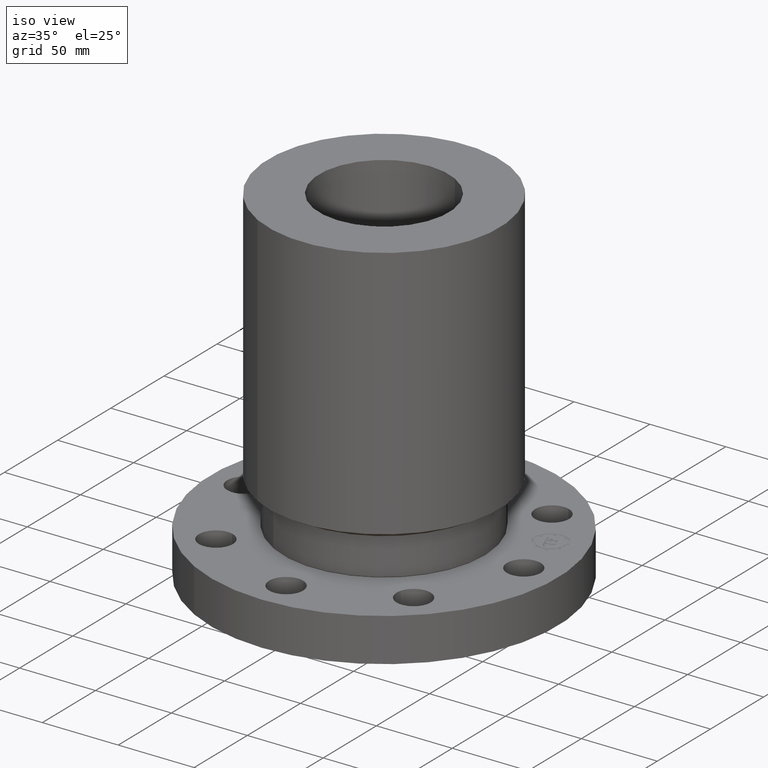
[diagram: clean part render]
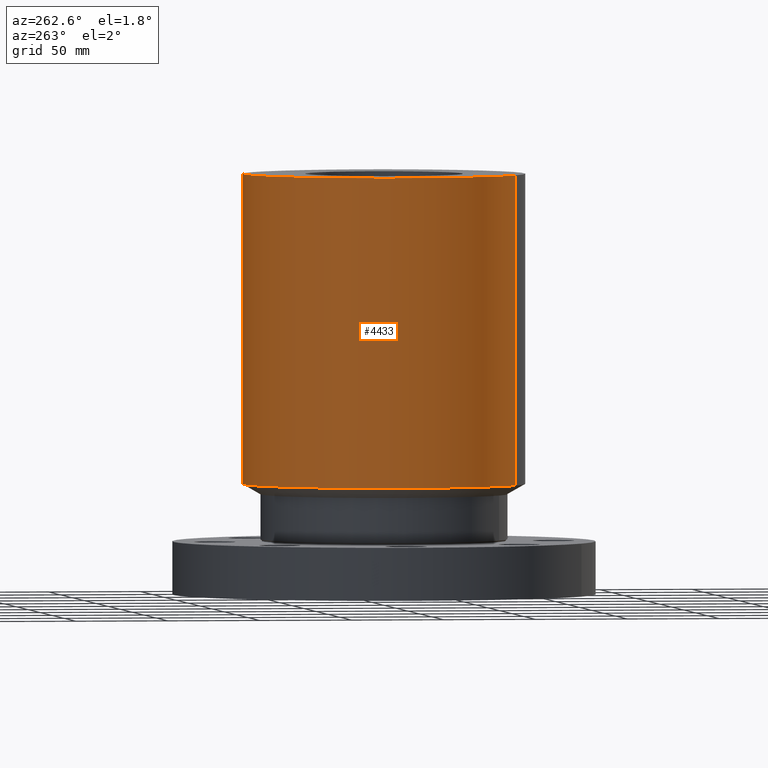
[diagram: tour spotlight — one face highlighted and labeled with its STEP entity id]
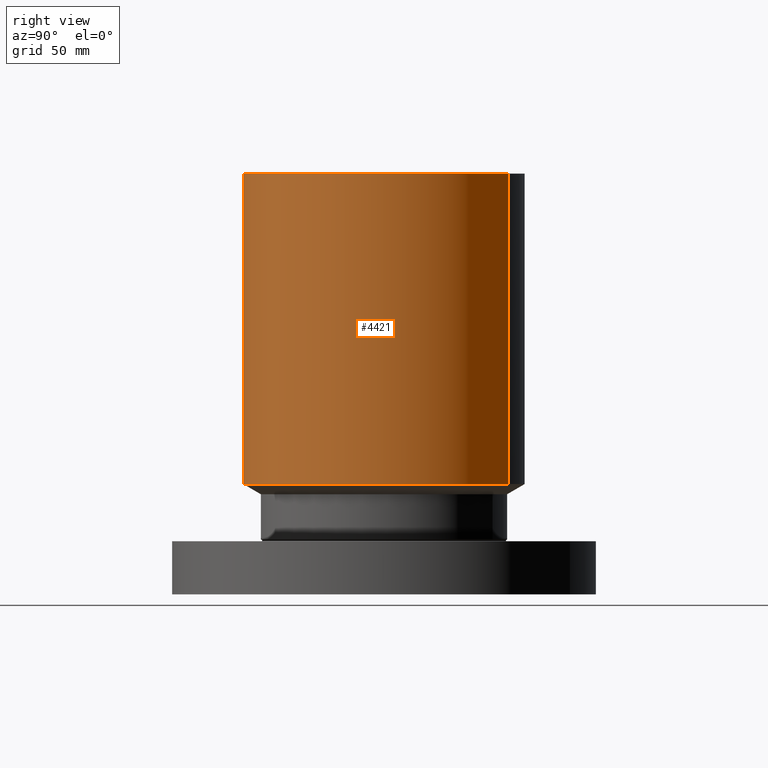
[diagram: tour spotlight — one face highlighted and labeled with its STEP entity id]
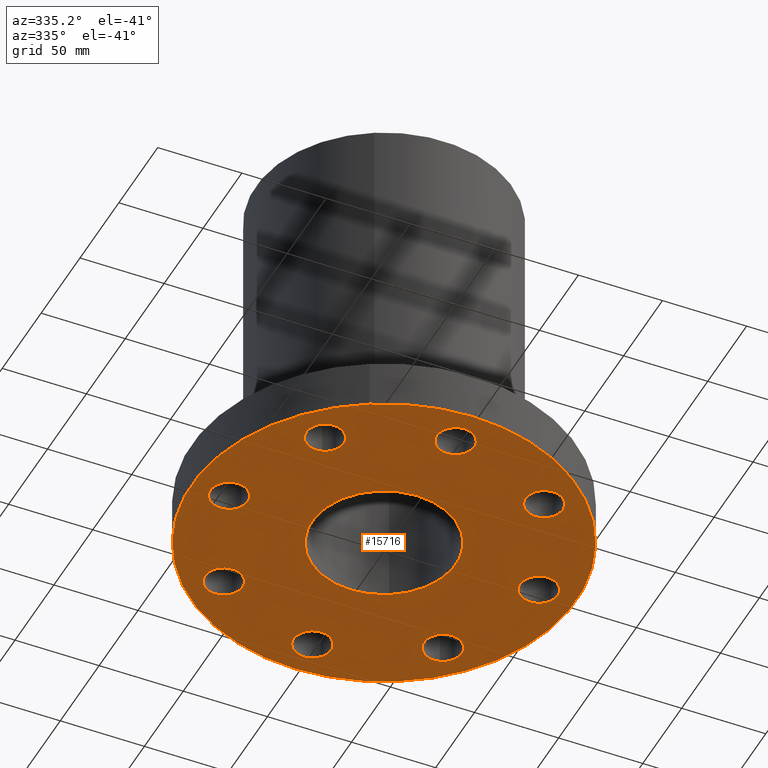
[diagram: tour spotlight — one face highlighted and labeled with its STEP entity id]
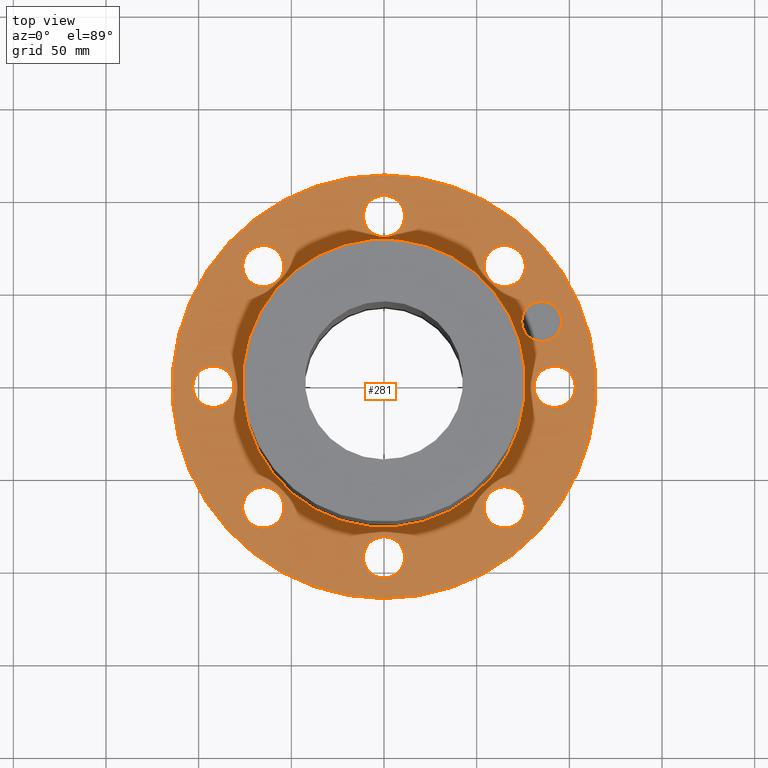
[diagram: tour spotlight — one face highlighted and labeled with its STEP entity id]
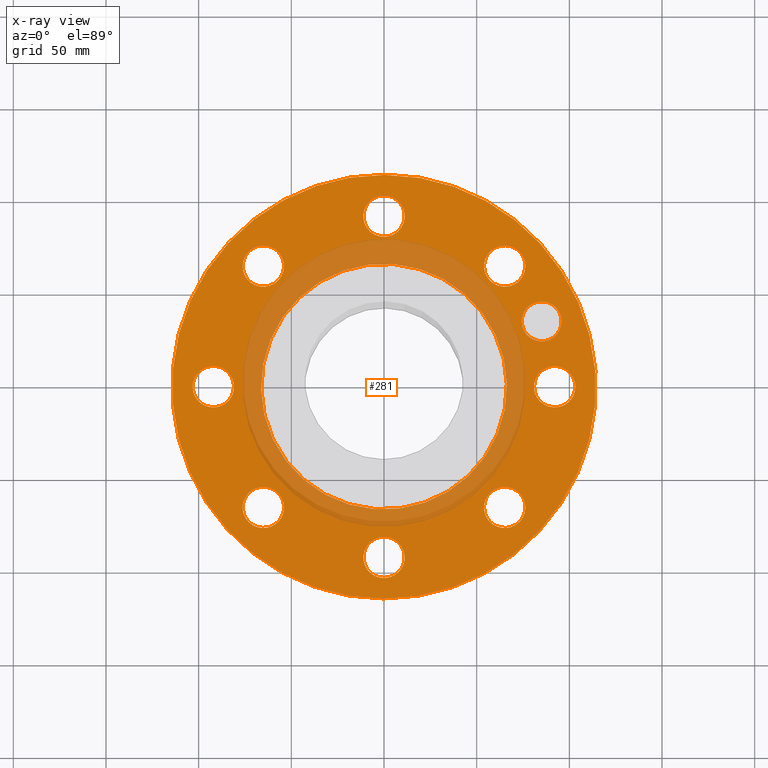
[diagram: x-ray of the same camera — body ghosted, this tour face saturated]
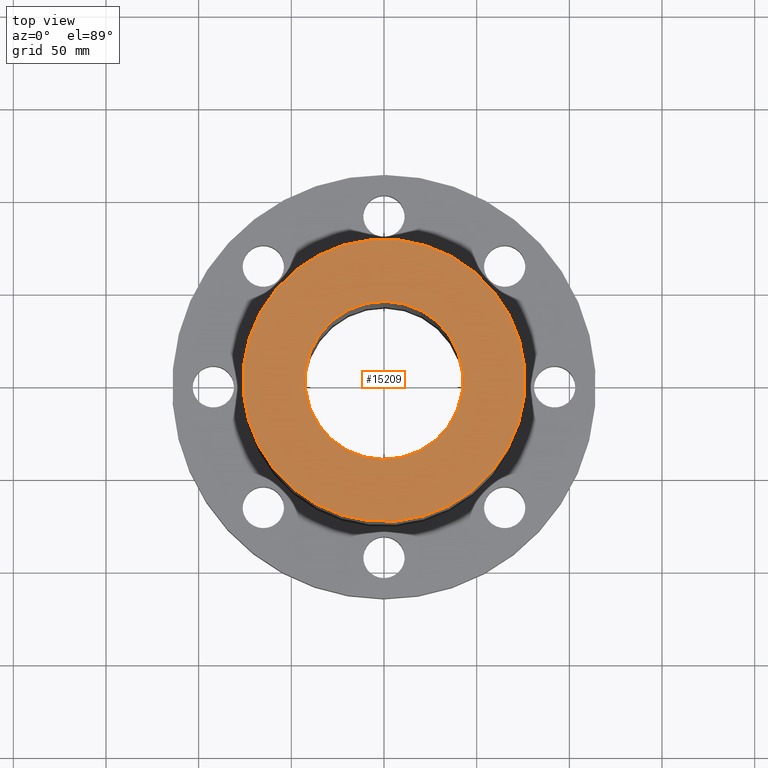
[diagram: tour spotlight — one face highlighted and labeled with its STEP entity id]
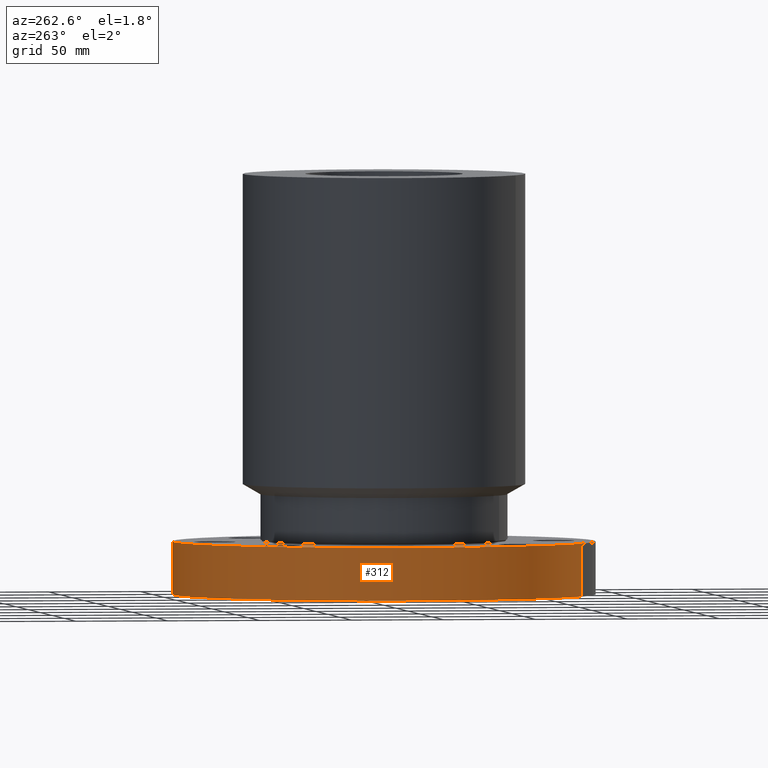
[diagram: tour spotlight — one face highlighted and labeled with its STEP entity id]
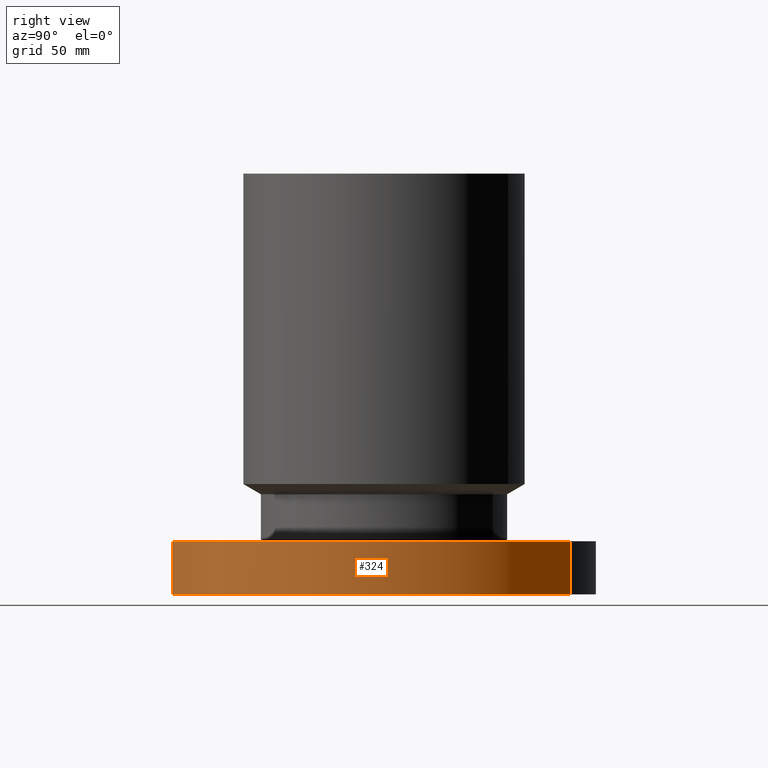
[diagram: tour spotlight — one face highlighted and labeled with its STEP entity id]
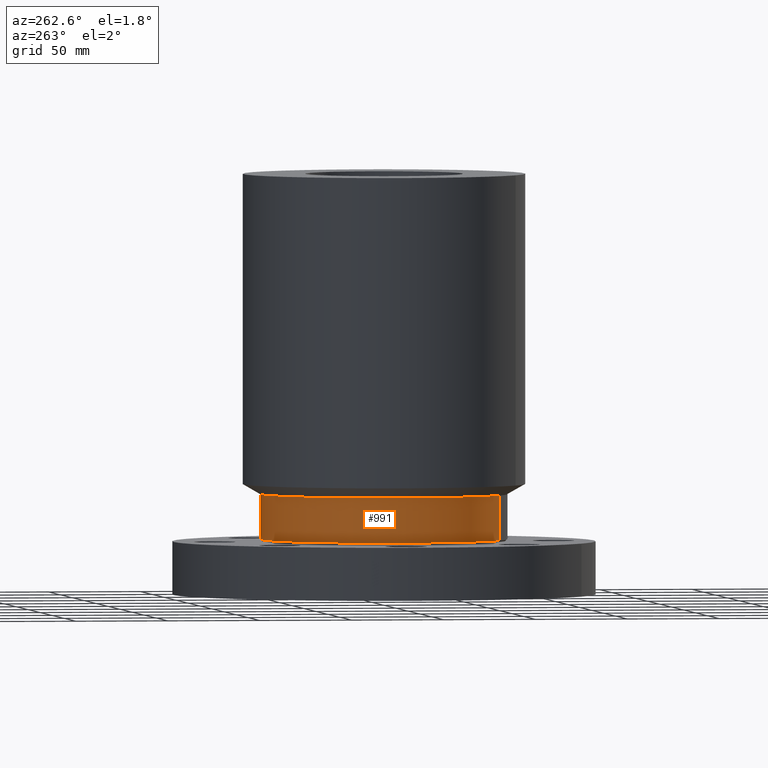
[diagram: tour spotlight — one face highlighted and labeled with its STEP entity id]
A machine part: a face-by-face anatomy tour. The part has 418 B-rep faces; the first image is the clean iso view, then the 8 largest visible faces are spotlighted one at a time (largest first), each with its STEP entity span.

Face 1 — auxiliary view, entity #4433. In plain terms, the highlighted cylindrical surface (partial cylindrical patch) has radius 76.2 mm, axis along (0, 0, -1).
Definition (entity closure, byte-faithful):
#1538=AXIS2_PLACEMENT_3D('Circle Axis2P3D',#1536,#1537,$) ;
#4394=AXIS2_PLACEMENT_3D('Cylinder Axis2P3D',#4391,#4392,#4393) ;
#4424=AXIS2_PLACEMENT_3D('Circle Axis2P3D',#4422,#4423,$) ;
#1514=CARTESIAN_POINT('Vertex',(1.43827661582,2.63274768568,2.34400635096)) ;
#1521=CARTESIAN_POINT('Vertex',(-1.43827661582,-2.63274768568,2.34400635096)) ;
#1536=CARTESIAN_POINT('Axis2P3D Location',(0.,0.,2.34400635096)) ;
#4391=CARTESIAN_POINT('Axis2P3D Location',(0.,0.,4.43750000002)) ;
#4396=CARTESIAN_POINT('Line Origine',(1.43827661582,2.63274768568,5.6407531755)) ;
#4400=CARTESIAN_POINT('Vertex',(1.43827661582,2.63274768568,8.93750000004)) ;
#4407=CARTESIAN_POINT('Vertex',(-1.43827661582,-2.63274768568,8.93750000004)) ;
#4410=CARTESIAN_POINT('Line Origine',(-1.43827661582,-2.63274768568,5.6407531755)) ;
#4422=CARTESIAN_POINT('Axis2P3D Location',(0.,0.,8.93750000004)) ;
#1537=DIRECTION('Axis2P3D Direction',(-0.,0.,0.0393700787402)) ;
#4392=DIRECTION('Axis2P3D Direction',(0.,0.,-0.0393700787402)) ;
#4393=DIRECTION('Axis2P3D XDirection',(-0.0188750212049,-0.0345504945626,0.)) ;
#4397=DIRECTION('Vector Direction',(0.,0.,-0.0393700787402)) ;
#4411=DIRECTION('Vector Direction',(0.,0.,-0.0393700787402)) ;
#4423=DIRECTION('Axis2P3D Direction',(0.,0.,-0.0393700787402)) ;
#4398=VECTOR('Line Direction',#4397,0.0393700787402) ;
#4412=VECTOR('Line Direction',#4411,0.0393700787402) ;
#4428=ORIENTED_EDGE('',*,*,#1540,.F.) ;
#4429=ORIENTED_EDGE('',*,*,#4414,.T.) ;
#4430=ORIENTED_EDGE('',*,*,#4426,.T.) ;
#4431=ORIENTED_EDGE('',*,*,#4402,.F.) ;
#4433=ADVANCED_FACE('PartBody',(#4432),#4395,.T.) ;
#1539=CIRCLE('generated circle',#1538,3.00000000001) ;
#4425=CIRCLE('generated circle',#4424,3.00000000001) ;
#4395=CYLINDRICAL_SURFACE('generated cylinder',#4394,3.00000000001) ;
#1540=EDGE_CURVE('',#1522,#1515,#1539,.F.) ;
#4402=EDGE_CURVE('',#1515,#4401,#4399,.F.) ;
#4414=EDGE_CURVE('',#1522,#4408,#4413,.F.) ;
#4426=EDGE_CURVE('',#4408,#4401,#4425,.T.) ;
#4427=EDGE_LOOP('',(#4428,#4429,#4430,#4431)) ;
#4432=FACE_OUTER_BOUND('',#4427,.T.) ;
#4399=LINE('Line',#4396,#4398) ;
#4413=LINE('Line',#4410,#4412) ;
#1515=VERTEX_POINT('',#1514) ;
#1522=VERTEX_POINT('',#1521) ;
#4401=VERTEX_POINT('',#4400) ;
#4408=VERTEX_POINT('',#4407) ;

Face 2 — right view, entity #4421. In plain terms, the highlighted cylindrical surface (partial cylindrical patch) has radius 76.2 mm, axis along (0, 0, -1).
Definition (entity closure, byte-faithful):
#1519=AXIS2_PLACEMENT_3D('Circle Axis2P3D',#1517,#1518,$) ;
#4394=AXIS2_PLACEMENT_3D('Cylinder Axis2P3D',#4391,#4392,#4393) ;
#4405=AXIS2_PLACEMENT_3D('Circle Axis2P3D',#4403,#4404,$) ;
#1514=CARTESIAN_POINT('Vertex',(1.43827661582,2.63274768568,2.34400635096)) ;
#1517=CARTESIAN_POINT('Axis2P3D Location',(0.,0.,2.34400635096)) ;
#1521=CARTESIAN_POINT('Vertex',(-1.43827661582,-2.63274768568,2.34400635096)) ;
#4391=CARTESIAN_POINT('Axis2P3D Location',(0.,0.,4.43750000002)) ;
#4396=CARTESIAN_POINT('Line Origine',(1.43827661582,2.63274768568,5.6407531755)) ;
#4400=CARTESIAN_POINT('Vertex',(1.43827661582,2.63274768568,8.93750000004)) ;
#4403=CARTESIAN_POINT('Axis2P3D Location',(0.,0.,8.93750000004)) ;
#4407=CARTESIAN_POINT('Vertex',(-1.43827661582,-2.63274768568,8.93750000004)) ;
#4410=CARTESIAN_POINT('Line Origine',(-1.43827661582,-2.63274768568,5.6407531755)) ;
#1518=DIRECTION('Axis2P3D Direction',(-0.,0.,0.0393700787402)) ;
#4392=DIRECTION('Axis2P3D Direction',(0.,0.,-0.0393700787402)) ;
#4393=DIRECTION('Axis2P3D XDirection',(-0.0188750212049,-0.0345504945626,0.)) ;
#4397=DIRECTION('Vector Direction',(0.,0.,-0.0393700787402)) ;
#4404=DIRECTION('Axis2P3D Direction',(0.,0.,-0.0393700787402)) ;
#4411=DIRECTION('Vector Direction',(0.,0.,-0.0393700787402)) ;
#4398=VECTOR('Line Direction',#4397,0.0393700787402) ;
#4412=VECTOR('Line Direction',#4411,0.0393700787402) ;
#4416=ORIENTED_EDGE('',*,*,#1523,.F.) ;
#4417=ORIENTED_EDGE('',*,*,#4402,.T.) ;
#4418=ORIENTED_EDGE('',*,*,#4409,.T.) ;
#4419=ORIENTED_EDGE('',*,*,#4414,.F.) ;
#4421=ADVANCED_FACE('PartBody',(#4420),#4395,.T.) ;
#1520=CIRCLE('generated circle',#1519,3.00000000001) ;
#4406=CIRCLE('generated circle',#4405,3.00000000001) ;
#4395=CYLINDRICAL_SURFACE('generated cylinder',#4394,3.00000000001) ;
#1523=EDGE_CURVE('',#1515,#1522,#1520,.F.) ;
#4402=EDGE_CURVE('',#1515,#4401,#4399,.F.) ;
#4409=EDGE_CURVE('',#4401,#4408,#4406,.T.) ;
#4414=EDGE_CURVE('',#1522,#4408,#4413,.F.) ;
#4415=EDGE_LOOP('',(#4416,#4417,#4418,#4419)) ;
#4420=FACE_OUTER_BOUND('',#4415,.T.) ;
#4399=LINE('Line',#4396,#4398) ;
#4413=LINE('Line',#4410,#4412) ;
#1515=VERTEX_POINT('',#1514) ;
#1522=VERTEX_POINT('',#1521) ;
#4401=VERTEX_POINT('',#4400) ;
#4408=VERTEX_POINT('',#4407) ;

Face 3 — auxiliary view, entity #15716. In plain terms, the highlighted planar face has unit normal (0, 0, 1).
Definition (entity closure, byte-faithful):
#65=AXIS2_PLACEMENT_3D('Circle Axis2P3D',#63,#64,$) ;
#82=AXIS2_PLACEMENT_3D('Circle Axis2P3D',#80,#81,$) ;
#289=AXIS2_PLACEMENT_3D('Circle Axis2P3D',#287,#288,$) ;
#315=AXIS2_PLACEMENT_3D('Circle Axis2P3D',#313,#314,$) ;
#389=AXIS2_PLACEMENT_3D('Circle Axis2P3D',#387,#388,$) ;
#401=AXIS2_PLACEMENT_3D('Circle Axis2P3D',#399,#400,$) ;
#432=AXIS2_PLACEMENT_3D('Circle Axis2P3D',#430,#431,$) ;
#444=AXIS2_PLACEMENT_3D('Circle Axis2P3D',#442,#443,$) ;
#475=AXIS2_PLACEMENT_3D('Circle Axis2P3D',#473,#474,$) ;
#487=AXIS2_PLACEMENT_3D('Circle Axis2P3D',#485,#486,$) ;
#518=AXIS2_PLACEMENT_3D('Circle Axis2P3D',#516,#517,$) ;
#530=AXIS2_PLACEMENT_3D('Circle Axis2P3D',#528,#529,$) ;
#561=AXIS2_PLACEMENT_3D('Circle Axis2P3D',#559,#560,$) ;
#573=AXIS2_PLACEMENT_3D('Circle Axis2P3D',#571,#572,$) ;
#604=AXIS2_PLACEMENT_3D('Circle Axis2P3D',#602,#603,$) ;
#616=AXIS2_PLACEMENT_3D('Circle Axis2P3D',#614,#615,$) ;
#647=AXIS2_PLACEMENT_3D('Circle Axis2P3D',#645,#646,$) ;
#659=AXIS2_PLACEMENT_3D('Circle Axis2P3D',#657,#658,$) ;
#15635=AXIS2_PLACEMENT_3D('Circle Axis2P3D',#15633,#15634,$) ;
#15661=AXIS2_PLACEMENT_3D('Circle Axis2P3D',#15659,#15660,$) ;
#15674=AXIS2_PLACEMENT_3D('Plane Axis2P3D',#15671,#15672,#15673) ;
#46=CARTESIAN_POINT('Vertex',(3.23886367278,-0.210947236987,2.2401153548E-016)) ;
#60=CARTESIAN_POINT('Vertex',(4.01113632725,0.210947236987,2.2401153548E-016)) ;
#63=CARTESIAN_POINT('Axis2P3D Location',(3.62500000001,0.,0.)) ;
#80=CARTESIAN_POINT('Axis2P3D Location',(3.62500000001,0.,0.)) ;
#287=CARTESIAN_POINT('Axis2P3D Location',(0.,0.,5.59482469102E-016)) ;
#291=CARTESIAN_POINT('Vertex',(-2.15741492373,-3.94912152852,5.59482469102E-016)) ;
#293=CARTESIAN_POINT('Vertex',(2.15741492373,3.94912152852,5.59482469102E-016)) ;
#313=CARTESIAN_POINT('Axis2P3D Location',(0.,0.,5.59482469102E-016)) ;
#377=CARTESIAN_POINT('Vertex',(2.14106024462,-2.43938468811,2.2401153548E-016)) ;
#384=CARTESIAN_POINT('Vertex',(2.98546391901,-2.68713947551,2.2401153548E-016)) ;
#387=CARTESIAN_POINT('Axis2P3D Location',(2.56326208181,-2.56326208181,0.)) ;
#399=CARTESIAN_POINT('Axis2P3D Location',(2.56326208181,-2.56326208181,0.)) ;
#420=CARTESIAN_POINT('Vertex',(-0.210947236987,-3.23886367278,2.2401153548E-016)) ;
#427=CARTESIAN_POINT('Vertex',(0.210947236987,-4.01113632725,2.2401153548E-016)) ;
#430=CARTESIAN_POINT('Axis2P3D Location',(-3.37515236756E-016,-3.62500000001,0.)) ;
#442=CARTESIAN_POINT('Axis2P3D Location',(-3.37515236756E-016,-3.62500000001,0.)) ;
#463=CARTESIAN_POINT('Vertex',(-2.43938468811,-2.14106024462,2.2401153548E-016)) ;
#470=CARTESIAN_POINT('Vertex',(-2.68713947551,-2.98546391901,2.2401153548E-016)) ;
#473=CARTESIAN_POINT('Axis2P3D Location',(-2.56326208181,-2.56326208181,0.)) ;
#485=CARTESIAN_POINT('Axis2P3D Location',(-2.56326208181,-2.56326208181,0.)) ;
#506=CARTESIAN_POINT('Vertex',(-3.23886367278,0.210947236987,2.2401153548E-016)) ;
#513=CARTESIAN_POINT('Vertex',(-4.01113632725,-0.210947236987,2.2401153548E-016)) ;
#516=CARTESIAN_POINT('Axis2P3D Location',(-3.62500000001,-4.43934464693E-016,0.)) ;
#528=CARTESIAN_POINT('Axis2P3D Location',(-3.62500000001,-4.43934464693E-016,0.)) ;
#549=CARTESIAN_POINT('Vertex',(-2.14106024462,2.43938468811,2.2401153548E-016)) ;
#556=CARTESIAN_POINT('Vertex',(-2.98546391901,2.68713947551,2.2401153548E-016)) ;
#559=CARTESIAN_POINT('Axis2P3D Location',(-2.56326208181,2.56326208181,0.)) ;
#571=CARTESIAN_POINT('Axis2P3D Location',(-2.56326208181,2.56326208181,0.)) ;
#592=CARTESIAN_POINT('Vertex',(0.210947236987,3.23886367278,2.2401153548E-016)) ;
#599=CARTESIAN_POINT('Vertex',(-0.210947236987,4.01113632725,2.2401153548E-016)) ;
#602=CARTESIAN_POINT('Axis2P3D Location',(-6.65901697039E-016,3.62500000001,0.)) ;
#614=CARTESIAN_POINT('Axis2P3D Location',(-6.65901697039E-016,3.62500000001,0.)) ;
#635=CARTESIAN_POINT('Vertex',(2.43938468811,2.14106024462,2.2401153548E-016)) ;
#642=CARTESIAN_POINT('Vertex',(2.68713947551,2.98546391901,2.2401153548E-016)) ;
#645=CARTESIAN_POINT('Axis2P3D Location',(2.56326208181,2.56326208181,0.)) ;
#657=CARTESIAN_POINT('Axis2P3D Location',(2.56326208181,2.56326208181,0.)) ;
#15633=CARTESIAN_POINT('Axis2P3D Location',(0.,0.,0.)) ;
#15637=CARTESIAN_POINT('Vertex',(-0.805434904858,-1.47433870398,0.)) ;
#15639=CARTESIAN_POINT('Vertex',(0.805434904858,1.47433870398,0.)) ;
#15659=CARTESIAN_POINT('Axis2P3D Location',(0.,0.,0.)) ;
#15671=CARTESIAN_POINT('Axis2P3D Location',(0.,0.,0.)) ;
#64=DIRECTION('Axis2P3D Direction',(0.,-0.,0.0393700787402)) ;
#81=DIRECTION('Axis2P3D Direction',(0.,-0.,0.0393700787402)) ;
#288=DIRECTION('Axis2P3D Direction',(0.,0.,-0.0393700787402)) ;
#314=DIRECTION('Axis2P3D Direction',(0.,0.,-0.0393700787402)) ;
#388=DIRECTION('Axis2P3D Direction',(-0.,0.,0.0393700787402)) ;
#400=DIRECTION('Axis2P3D Direction',(-0.,0.,0.0393700787402)) ;
#431=DIRECTION('Axis2P3D Direction',(-0.,0.,0.0393700787402)) ;
#443=DIRECTION('Axis2P3D Direction',(-0.,0.,0.0393700787402)) ;
#474=DIRECTION('Axis2P3D Direction',(0.,0.,0.0393700787402)) ;
#486=DIRECTION('Axis2P3D Direction',(0.,0.,0.0393700787402)) ;
#517=DIRECTION('Axis2P3D Direction',(0.,0.,0.0393700787402)) ;
#529=DIRECTION('Axis2P3D Direction',(0.,0.,0.0393700787402)) ;
#560=DIRECTION('Axis2P3D Direction',(0.,0.,0.0393700787402)) ;
#572=DIRECTION('Axis2P3D Direction',(0.,0.,0.0393700787402)) ;
#603=DIRECTION('Axis2P3D Direction',(0.,0.,0.0393700787402)) ;
#615=DIRECTION('Axis2P3D Direction',(0.,0.,0.0393700787402)) ;
#646=DIRECTION('Axis2P3D Direction',(0.,-0.,0.0393700787402)) ;
#658=DIRECTION('Axis2P3D Direction',(0.,-0.,0.0393700787402)) ;
#15634=DIRECTION('Axis2P3D Direction',(0.,0.,-0.0393700787402)) ;
#15660=DIRECTION('Axis2P3D Direction',(0.,0.,-0.0393700787402)) ;
#15672=DIRECTION('Axis2P3D Direction',(0.,0.,0.0393700787402)) ;
#15673=DIRECTION('Axis2P3D XDirection',(0.0393700787402,0.,0.)) ;
#15677=ORIENTED_EDGE('',*,*,#317,.T.) ;
#15678=ORIENTED_EDGE('',*,*,#295,.T.) ;
#15681=ORIENTED_EDGE('',*,*,#649,.F.) ;
#15682=ORIENTED_EDGE('',*,*,#661,.F.) ;
#15685=ORIENTED_EDGE('',*,*,#606,.F.) ;
#15686=ORIENTED_EDGE('',*,*,#618,.F.) ;
#15689=ORIENTED_EDGE('',*,*,#563,.F.) ;
#15690=ORIENTED_EDGE('',*,*,#575,.F.) ;
#15693=ORIENTED_EDGE('',*,*,#520,.F.) ;
#15694=ORIENTED_EDGE('',*,*,#532,.F.) ;
#15697=ORIENTED_EDGE('',*,*,#477,.F.) ;
#15698=ORIENTED_EDGE('',*,*,#489,.F.) ;
#15701=ORIENTED_EDGE('',*,*,#434,.F.) ;
#15702=ORIENTED_EDGE('',*,*,#446,.F.) ;
#15705=ORIENTED_EDGE('',*,*,#391,.F.) ;
#15706=ORIENTED_EDGE('',*,*,#403,.F.) ;
#15709=ORIENTED_EDGE('',*,*,#84,.F.) ;
#15710=ORIENTED_EDGE('',*,*,#67,.F.) ;
#15713=ORIENTED_EDGE('',*,*,#15663,.T.) ;
#15714=ORIENTED_EDGE('',*,*,#15641,.T.) ;
#15683=FACE_BOUND('',#15680,.T.) ;
#15687=FACE_BOUND('',#15684,.T.) ;
#15691=FACE_BOUND('',#15688,.T.) ;
#15695=FACE_BOUND('',#15692,.T.) ;
#15699=FACE_BOUND('',#15696,.T.) ;
#15703=FACE_BOUND('',#15700,.T.) ;
#15707=FACE_BOUND('',#15704,.T.) ;
#15711=FACE_BOUND('',#15708,.T.) ;
#15715=FACE_BOUND('',#15712,.T.) ;
#15716=ADVANCED_FACE('PartBody',(#15679,#15683,#15687,#15691,#15695,#15699,#15703,#15707,#15711,#15715),#15675,.F.) ;
#66=CIRCLE('generated circle',#65,0.440000000002) ;
#83=CIRCLE('generated circle',#82,0.440000000002) ;
#290=CIRCLE('generated circle',#289,4.50000000002) ;
#316=CIRCLE('generated circle',#315,4.50000000002) ;
#390=CIRCLE('generated circle',#389,0.440000000002) ;
#402=CIRCLE('generated circle',#401,0.440000000002) ;
#433=CIRCLE('generated circle',#432,0.440000000002) ;
#445=CIRCLE('generated circle',#444,0.440000000002) ;
#476=CIRCLE('generated circle',#475,0.440000000002) ;
#488=CIRCLE('generated circle',#487,0.440000000002) ;
#519=CIRCLE('generated circle',#518,0.440000000002) ;
#531=CIRCLE('generated circle',#530,0.440000000002) ;
#562=CIRCLE('generated circle',#561,0.440000000002) ;
#574=CIRCLE('generated circle',#573,0.440000000002) ;
#605=CIRCLE('generated circle',#604,0.440000000002) ;
#617=CIRCLE('generated circle',#616,0.440000000002) ;
#648=CIRCLE('generated circle',#647,0.440000000002) ;
#660=CIRCLE('generated circle',#659,0.440000000002) ;
#15636=CIRCLE('generated circle',#15635,1.68000000001) ;
#15662=CIRCLE('generated circle',#15661,1.68000000001) ;
#67=EDGE_CURVE('',#61,#47,#66,.F.) ;
#84=EDGE_CURVE('',#47,#61,#83,.F.) ;
#295=EDGE_CURVE('',#292,#294,#290,.T.) ;
#317=EDGE_CURVE('',#294,#292,#316,.T.) ;
#391=EDGE_CURVE('',#385,#378,#390,.F.) ;
#403=EDGE_CURVE('',#378,#385,#402,.F.) ;
#434=EDGE_CURVE('',#428,#421,#433,.F.) ;
#446=EDGE_CURVE('',#421,#428,#445,.F.) ;
#477=EDGE_CURVE('',#471,#464,#476,.F.) ;
#489=EDGE_CURVE('',#464,#471,#488,.F.) ;
#520=EDGE_CURVE('',#514,#507,#519,.F.) ;
#532=EDGE_CURVE('',#507,#514,#531,.F.) ;
#563=EDGE_CURVE('',#557,#550,#562,.F.) ;
#575=EDGE_CURVE('',#550,#557,#574,.F.) ;
#606=EDGE_CURVE('',#600,#593,#605,.F.) ;
#618=EDGE_CURVE('',#593,#600,#617,.F.) ;
#649=EDGE_CURVE('',#643,#636,#648,.F.) ;
#661=EDGE_CURVE('',#636,#643,#660,.F.) ;
#15641=EDGE_CURVE('',#15638,#15640,#15636,.F.) ;
#15663=EDGE_CURVE('',#15640,#15638,#15662,.F.) ;
#15676=EDGE_LOOP('',(#15677,#15678)) ;
#15680=EDGE_LOOP('',(#15681,#15682)) ;
#15684=EDGE_LOOP('',(#15685,#15686)) ;
#15688=EDGE_LOOP('',(#15689,#15690)) ;
#15692=EDGE_LOOP('',(#15693,#15694)) ;
#15696=EDGE_LOOP('',(#15697,#15698)) ;
#15700=EDGE_LOOP('',(#15701,#15702)) ;
#15704=EDGE_LOOP('',(#15705,#15706)) ;
#15708=EDGE_LOOP('',(#15709,#15710)) ;
#15712=EDGE_LOOP('',(#15713,#15714)) ;
#15679=FACE_OUTER_BOUND('',#15676,.T.) ;
#15675=PLANE('',#15674) ;
#47=VERTEX_POINT('',#46) ;
#61=VERTEX_POINT('',#60) ;
#292=VERTEX_POINT('',#291) ;
#294=VERTEX_POINT('',#293) ;
#378=VERTEX_POINT('',#377) ;
#385=VERTEX_POINT('',#384) ;
#421=VERTEX_POINT('',#420) ;
#428=VERTEX_POINT('',#427) ;
#464=VERTEX_POINT('',#463) ;
#471=VERTEX_POINT('',#470) ;
#507=VERTEX_POINT('',#506) ;
#514=VERTEX_POINT('',#513) ;
#550=VERTEX_POINT('',#549) ;
#557=VERTEX_POINT('',#556) ;
#593=VERTEX_POINT('',#592) ;
#600=VERTEX_POINT('',#599) ;
#636=VERTEX_POINT('',#635) ;
#643=VERTEX_POINT('',#642) ;
#15638=VERTEX_POINT('',#15637) ;
#15640=VERTEX_POINT('',#15639) ;

Face 4 — top view, entity #281. An x-ray twin of the same camera follows (body ghosted, this face saturated) — the face is partly hidden behind the body. In plain terms, the highlighted planar face has unit normal (0, 0, -1).
Definition (entity closure, byte-faithful):
#51=AXIS2_PLACEMENT_3D('Circle Axis2P3D',#49,#50,$) ;
#77=AXIS2_PLACEMENT_3D('Circle Axis2P3D',#75,#76,$) ;
#95=AXIS2_PLACEMENT_3D('Plane Axis2P3D',#92,#93,#94) ;
#99=AXIS2_PLACEMENT_3D('Circle Axis2P3D',#97,#98,$) ;
#108=AXIS2_PLACEMENT_3D('Circle Axis2P3D',#106,#107,$) ;
#121=AXIS2_PLACEMENT_3D('Circle Axis2P3D',#119,#120,$) ;
#130=AXIS2_PLACEMENT_3D('Circle Axis2P3D',#128,#129,$) ;
#139=AXIS2_PLACEMENT_3D('Circle Axis2P3D',#137,#138,$) ;
#148=AXIS2_PLACEMENT_3D('Circle Axis2P3D',#146,#147,$) ;
#157=AXIS2_PLACEMENT_3D('Circle Axis2P3D',#155,#156,$) ;
#166=AXIS2_PLACEMENT_3D('Circle Axis2P3D',#164,#165,$) ;
#175=AXIS2_PLACEMENT_3D('Circle Axis2P3D',#173,#174,$) ;
#184=AXIS2_PLACEMENT_3D('Circle Axis2P3D',#182,#183,$) ;
#193=AXIS2_PLACEMENT_3D('Circle Axis2P3D',#191,#192,$) ;
#202=AXIS2_PLACEMENT_3D('Circle Axis2P3D',#200,#201,$) ;
#211=AXIS2_PLACEMENT_3D('Circle Axis2P3D',#209,#210,$) ;
#220=AXIS2_PLACEMENT_3D('Circle Axis2P3D',#218,#219,$) ;
#229=AXIS2_PLACEMENT_3D('Circle Axis2P3D',#227,#228,$) ;
#238=AXIS2_PLACEMENT_3D('Circle Axis2P3D',#236,#237,$) ;
#247=AXIS2_PLACEMENT_3D('Circle Axis2P3D',#245,#246,$) ;
#256=AXIS2_PLACEMENT_3D('Circle Axis2P3D',#254,#255,$) ;
#265=AXIS2_PLACEMENT_3D('Circle Axis2P3D',#263,#264,$) ;
#274=AXIS2_PLACEMENT_3D('Circle Axis2P3D',#272,#273,$) ;
#44=CARTESIAN_POINT('Vertex',(3.23886367278,-0.210947236987,1.1275)) ;
#49=CARTESIAN_POINT('Axis2P3D Location',(3.62500000001,0.,1.1275)) ;
#53=CARTESIAN_POINT('Vertex',(4.01113632725,0.210947236987,1.1275)) ;
#75=CARTESIAN_POINT('Axis2P3D Location',(3.62500000001,0.,1.1275)) ;
#92=CARTESIAN_POINT('Axis2P3D Location',(0.,4.50000000002,1.1275)) ;
#97=CARTESIAN_POINT('Axis2P3D Location',(0.,0.,1.1275)) ;
#101=CARTESIAN_POINT('Vertex',(2.15741492373,3.94912152852,1.1275)) ;
#103=CARTESIAN_POINT('Vertex',(-2.15741492373,-3.94912152852,1.1275)) ;
#106=CARTESIAN_POINT('Axis2P3D Location',(0.,0.,1.1275)) ;
#119=CARTESIAN_POINT('Axis2P3D Location',(0.,0.,1.1275)) ;
#123=CARTESIAN_POINT('Vertex',(-1.25130065576,-2.29049048654,1.1275)) ;
#125=CARTESIAN_POINT('Vertex',(1.25130065576,2.29049048654,1.1275)) ;
#128=CARTESIAN_POINT('Axis2P3D Location',(0.,0.,1.1275)) ;
#137=CARTESIAN_POINT('Axis2P3D Location',(2.56326208181,-2.56326208181,1.1275)) ;
#141=CARTESIAN_POINT('Vertex',(2.14106024462,-2.43938468811,1.1275)) ;
#143=CARTESIAN_POINT('Vertex',(2.98546391901,-2.68713947551,1.1275)) ;
#146=CARTESIAN_POINT('Axis2P3D Location',(2.56326208181,-2.56326208181,1.1275)) ;
#155=CARTESIAN_POINT('Axis2P3D Location',(-1.39870617276E-016,-3.62500000001,1.1275)) ;
#159=CARTESIAN_POINT('Vertex',(-0.210947236987,-3.23886367278,1.1275)) ;
#161=CARTESIAN_POINT('Vertex',(0.210947236987,-4.01113632725,1.1275)) ;
#164=CARTESIAN_POINT('Axis2P3D Location',(-2.44773580232E-016,-3.62500000001,1.1275)) ;
#173=CARTESIAN_POINT('Axis2P3D Location',(-2.56326208181,-2.56326208181,1.1275)) ;
#177=CARTESIAN_POINT('Vertex',(-2.43938468811,-2.14106024462,1.1275)) ;
#179=CARTESIAN_POINT('Vertex',(-2.68713947551,-2.98546391901,1.1275)) ;
#182=CARTESIAN_POINT('Axis2P3D Location',(-2.56326208181,-2.56326208181,1.1275)) ;
#191=CARTESIAN_POINT('Axis2P3D Location',(-3.62500000001,-5.59482469102E-016,1.1275)) ;
#195=CARTESIAN_POINT('Vertex',(-3.23886367278,0.210947236987,1.1275)) ;
#197=CARTESIAN_POINT('Vertex',(-4.01113632725,-0.210947236987,1.1275)) ;
#200=CARTESIAN_POINT('Axis2P3D Location',(-3.62500000001,0.,1.1275)) ;
#209=CARTESIAN_POINT('Axis2P3D Location',(-2.56326208181,2.56326208181,1.1275)) ;
#213=CARTESIAN_POINT('Vertex',(-2.14106024462,2.43938468811,1.1275)) ;
#215=CARTESIAN_POINT('Vertex',(-2.98546391901,2.68713947551,1.1275)) ;
#218=CARTESIAN_POINT('Axis2P3D Location',(-2.56326208181,2.56326208181,1.1275)) ;
#227=CARTESIAN_POINT('Axis2P3D Location',(-4.54579506146E-016,3.62500000001,1.1275)) ;
#231=CARTESIAN_POINT('Vertex',(0.210947236987,3.23886367278,1.1275)) ;
#233=CARTESIAN_POINT('Vertex',(-0.210947236987,4.01113632725,1.1275)) ;
#236=CARTESIAN_POINT('Axis2P3D Location',(-1.04902962957E-015,3.62500000001,1.1275)) ;
#245=CARTESIAN_POINT('Axis2P3D Location',(2.56326208181,2.56326208181,1.1275)) ;
#249=CARTESIAN_POINT('Vertex',(2.43938468811,2.14106024462,1.1275)) ;
#251=CARTESIAN_POINT('Vertex',(2.68713947551,2.98546391901,1.1275)) ;
#254=CARTESIAN_POINT('Axis2P3D Location',(2.56326208181,2.56326208181,1.1275)) ;
#263=CARTESIAN_POINT('Axis2P3D Location',(3.34906330537,1.38722744233,1.1275)) ;
#267=CARTESIAN_POINT('Vertex',(3.5117037625,0.994578644937,1.1275)) ;
#269=CARTESIAN_POINT('Vertex',(3.18642284824,1.77987623972,1.1275)) ;
#272=CARTESIAN_POINT('Axis2P3D Location',(3.34906330537,1.38722744233,1.1275)) ;
#50=DIRECTION('Axis2P3D Direction',(0.,-0.,0.0393700787402)) ;
#76=DIRECTION('Axis2P3D Direction',(0.,-0.,0.0393700787402)) ;
#93=DIRECTION('Axis2P3D Direction',(0.,0.,-0.0393700787402)) ;
#94=DIRECTION('Axis2P3D XDirection',(0.0393700787402,0.,0.)) ;
#98=DIRECTION('Axis2P3D Direction',(0.,0.,-0.0393700787402)) ;
#107=DIRECTION('Axis2P3D Direction',(0.,0.,-0.0393700787402)) ;
#120=DIRECTION('Axis2P3D Direction',(0.,0.,-0.0393700787402)) ;
#129=DIRECTION('Axis2P3D Direction',(0.,0.,-0.0393700787402)) ;
#138=DIRECTION('Axis2P3D Direction',(0.,0.,-0.0393700787402)) ;
#147=DIRECTION('Axis2P3D Direction',(0.,0.,-0.0393700787402)) ;
#156=DIRECTION('Axis2P3D Direction',(0.,0.,-0.0393700787402)) ;
#165=DIRECTION('Axis2P3D Direction',(0.,0.,-0.0393700787402)) ;
#174=DIRECTION('Axis2P3D Direction',(0.,0.,-0.0393700787402)) ;
#183=DIRECTION('Axis2P3D Direction',(0.,0.,-0.0393700787402)) ;
#192=DIRECTION('Axis2P3D Direction',(0.,0.,-0.0393700787402)) ;
#201=DIRECTION('Axis2P3D Direction',(0.,0.,-0.0393700787402)) ;
#210=DIRECTION('Axis2P3D Direction',(0.,0.,-0.0393700787402)) ;
#219=DIRECTION('Axis2P3D Direction',(0.,0.,-0.0393700787402)) ;
#228=DIRECTION('Axis2P3D Direction',(0.,0.,-0.0393700787402)) ;
#237=DIRECTION('Axis2P3D Direction',(0.,0.,-0.0393700787402)) ;
#246=DIRECTION('Axis2P3D Direction',(0.,0.,-0.0393700787402)) ;
#255=DIRECTION('Axis2P3D Direction',(0.,0.,-0.0393700787402)) ;
#264=DIRECTION('Axis2P3D Direction',(0.,0.,-0.0393700787402)) ;
#273=DIRECTION('Axis2P3D Direction',(0.,0.,-0.0393700787402)) ;
#112=ORIENTED_EDGE('',*,*,#105,.F.) ;
#113=ORIENTED_EDGE('',*,*,#110,.F.) ;
#116=ORIENTED_EDGE('',*,*,#55,.T.) ;
#117=ORIENTED_EDGE('',*,*,#79,.T.) ;
#134=ORIENTED_EDGE('',*,*,#127,.T.) ;
#135=ORIENTED_EDGE('',*,*,#132,.T.) ;
#152=ORIENTED_EDGE('',*,*,#145,.T.) ;
#153=ORIENTED_EDGE('',*,*,#150,.T.) ;
#170=ORIENTED_EDGE('',*,*,#163,.T.) ;
#171=ORIENTED_EDGE('',*,*,#168,.T.) ;
#188=ORIENTED_EDGE('',*,*,#181,.T.) ;
#189=ORIENTED_EDGE('',*,*,#186,.T.) ;
#206=ORIENTED_EDGE('',*,*,#199,.T.) ;
#207=ORIENTED_EDGE('',*,*,#204,.T.) ;
#224=ORIENTED_EDGE('',*,*,#217,.T.) ;
#225=ORIENTED_EDGE('',*,*,#222,.T.) ;
#242=ORIENTED_EDGE('',*,*,#235,.T.) ;
#243=ORIENTED_EDGE('',*,*,#240,.T.) ;
#260=ORIENTED_EDGE('',*,*,#253,.T.) ;
#261=ORIENTED_EDGE('',*,*,#258,.T.) ;
#278=ORIENTED_EDGE('',*,*,#271,.F.) ;
#279=ORIENTED_EDGE('',*,*,#276,.F.) ;
#118=FACE_BOUND('',#115,.T.) ;
#136=FACE_BOUND('',#133,.T.) ;
#154=FACE_BOUND('',#151,.T.) ;
#172=FACE_BOUND('',#169,.T.) ;
#190=FACE_BOUND('',#187,.T.) ;
#208=FACE_BOUND('',#205,.T.) ;
#226=FACE_BOUND('',#223,.T.) ;
#244=FACE_BOUND('',#241,.T.) ;
#262=FACE_BOUND('',#259,.T.) ;
#280=FACE_BOUND('',#277,.T.) ;
#281=ADVANCED_FACE('PartBody',(#114,#118,#136,#154,#172,#190,#208,#226,#244,#262,#280),#96,.F.) ;
#52=CIRCLE('generated circle',#51,0.440000000002) ;
#78=CIRCLE('generated circle',#77,0.440000000002) ;
#100=CIRCLE('generated circle',#99,4.50000000002) ;
#109=CIRCLE('generated circle',#108,4.50000000002) ;
#122=CIRCLE('generated circle',#121,2.61000000001) ;
#131=CIRCLE('generated circle',#130,2.61000000001) ;
#140=CIRCLE('generated circle',#139,0.440000000002) ;
#149=CIRCLE('generated circle',#148,0.440000000002) ;
#158=CIRCLE('generated circle',#157,0.440000000002) ;
#167=CIRCLE('generated circle',#166,0.440000000002) ;
#176=CIRCLE('generated circle',#175,0.440000000002) ;
#185=CIRCLE('generated circle',#184,0.440000000002) ;
#194=CIRCLE('generated circle',#193,0.440000000002) ;
#203=CIRCLE('generated circle',#202,0.440000000002) ;
#212=CIRCLE('generated circle',#211,0.440000000002) ;
#221=CIRCLE('generated circle',#220,0.440000000002) ;
#230=CIRCLE('generated circle',#229,0.440000000002) ;
#239=CIRCLE('generated circle',#238,0.440000000002) ;
#248=CIRCLE('generated circle',#247,0.440000000002) ;
#257=CIRCLE('generated circle',#256,0.440000000002) ;
#266=CIRCLE('generated circle',#265,0.424999995752) ;
#275=CIRCLE('generated circle',#274,0.424999995752) ;
#55=EDGE_CURVE('',#54,#45,#52,.F.) ;
#79=EDGE_CURVE('',#45,#54,#78,.F.) ;
#105=EDGE_CURVE('',#102,#104,#100,.T.) ;
#110=EDGE_CURVE('',#104,#102,#109,.T.) ;
#127=EDGE_CURVE('',#124,#126,#122,.T.) ;
#132=EDGE_CURVE('',#126,#124,#131,.T.) ;
#145=EDGE_CURVE('',#142,#144,#140,.T.) ;
#150=EDGE_CURVE('',#144,#142,#149,.T.) ;
#163=EDGE_CURVE('',#160,#162,#158,.T.) ;
#168=EDGE_CURVE('',#162,#160,#167,.T.) ;
#181=EDGE_CURVE('',#178,#180,#176,.T.) ;
#186=EDGE_CURVE('',#180,#178,#185,.T.) ;
#199=EDGE_CURVE('',#196,#198,#194,.T.) ;
#204=EDGE_CURVE('',#198,#196,#203,.T.) ;
#217=EDGE_CURVE('',#214,#216,#212,.T.) ;
#222=EDGE_CURVE('',#216,#214,#221,.T.) ;
#235=EDGE_CURVE('',#232,#234,#230,.T.) ;
#240=EDGE_CURVE('',#234,#232,#239,.T.) ;
#253=EDGE_CURVE('',#250,#252,#248,.T.) ;
#258=EDGE_CURVE('',#252,#250,#257,.T.) ;
#271=EDGE_CURVE('',#268,#270,#266,.F.) ;
#276=EDGE_CURVE('',#270,#268,#275,.F.) ;
#111=EDGE_LOOP('',(#112,#113)) ;
#115=EDGE_LOOP('',(#116,#117)) ;
#133=EDGE_LOOP('',(#134,#135)) ;
#151=EDGE_LOOP('',(#152,#153)) ;
#169=EDGE_LOOP('',(#170,#171)) ;
#187=EDGE_LOOP('',(#188,#189)) ;
#205=EDGE_LOOP('',(#206,#207)) ;
#223=EDGE_LOOP('',(#224,#225)) ;
#241=EDGE_LOOP('',(#242,#243)) ;
#259=EDGE_LOOP('',(#260,#261)) ;
#277=EDGE_LOOP('',(#278,#279)) ;
#114=FACE_OUTER_BOUND('',#111,.T.) ;
#96=PLANE('',#95) ;
#45=VERTEX_POINT('',#44) ;
#54=VERTEX_POINT('',#53) ;
#102=VERTEX_POINT('',#101) ;
#104=VERTEX_POINT('',#103) ;
#124=VERTEX_POINT('',#123) ;
#126=VERTEX_POINT('',#125) ;
#142=VERTEX_POINT('',#141) ;
#144=VERTEX_POINT('',#143) ;
#160=VERTEX_POINT('',#159) ;
#162=VERTEX_POINT('',#161) ;
#178=VERTEX_POINT('',#177) ;
#180=VERTEX_POINT('',#179) ;
#196=VERTEX_POINT('',#195) ;
#198=VERTEX_POINT('',#197) ;
#214=VERTEX_POINT('',#213) ;
#216=VERTEX_POINT('',#215) ;
#232=VERTEX_POINT('',#231) ;
#234=VERTEX_POINT('',#233) ;
#250=VERTEX_POINT('',#249) ;
#252=VERTEX_POINT('',#251) ;
#268=VERTEX_POINT('',#267) ;
#270=VERTEX_POINT('',#269) ;

Face 5 — top view, entity #15209. In plain terms, the highlighted planar face has unit normal (0, 0, -1).
Definition (entity closure, byte-faithful):
#4405=AXIS2_PLACEMENT_3D('Circle Axis2P3D',#4403,#4404,$) ;
#4424=AXIS2_PLACEMENT_3D('Circle Axis2P3D',#4422,#4423,$) ;
#15185=AXIS2_PLACEMENT_3D('Plane Axis2P3D',#15182,#15183,#15184) ;
#15193=AXIS2_PLACEMENT_3D('Circle Axis2P3D',#15191,#15192,$) ;
#15202=AXIS2_PLACEMENT_3D('Circle Axis2P3D',#15200,#15201,$) ;
#4400=CARTESIAN_POINT('Vertex',(1.43827661582,2.63274768568,8.93750000004)) ;
#4403=CARTESIAN_POINT('Axis2P3D Location',(0.,0.,8.93750000004)) ;
#4407=CARTESIAN_POINT('Vertex',(-1.43827661582,-2.63274768568,8.93750000004)) ;
#4422=CARTESIAN_POINT('Axis2P3D Location',(0.,0.,8.93750000004)) ;
#15182=CARTESIAN_POINT('Axis2P3D Location',(0.,3.00000000001,8.93750000004)) ;
#15191=CARTESIAN_POINT('Axis2P3D Location',(0.,0.,8.93750000004)) ;
#15195=CARTESIAN_POINT('Vertex',(-0.805434904858,-1.47433870398,8.93750000004)) ;
#15197=CARTESIAN_POINT('Vertex',(0.805434904858,1.47433870398,8.93750000004)) ;
#15200=CARTESIAN_POINT('Axis2P3D Location',(0.,0.,8.93750000004)) ;
#4404=DIRECTION('Axis2P3D Direction',(0.,0.,-0.0393700787402)) ;
#4423=DIRECTION('Axis2P3D Direction',(0.,0.,-0.0393700787402)) ;
#15183=DIRECTION('Axis2P3D Direction',(0.,0.,-0.0393700787402)) ;
#15184=DIRECTION('Axis2P3D XDirection',(0.0393700787402,0.,0.)) ;
#15192=DIRECTION('Axis2P3D Direction',(0.,0.,-0.0393700787402)) ;
#15201=DIRECTION('Axis2P3D Direction',(0.,0.,-0.0393700787402)) ;
#15188=ORIENTED_EDGE('',*,*,#4409,.F.) ;
#15189=ORIENTED_EDGE('',*,*,#4426,.F.) ;
#15206=ORIENTED_EDGE('',*,*,#15199,.T.) ;
#15207=ORIENTED_EDGE('',*,*,#15204,.T.) ;
#15208=FACE_BOUND('',#15205,.T.) ;
#15209=ADVANCED_FACE('PartBody',(#15190,#15208),#15186,.F.) ;
#4406=CIRCLE('generated circle',#4405,3.00000000001) ;
#4425=CIRCLE('generated circle',#4424,3.00000000001) ;
#15194=CIRCLE('generated circle',#15193,1.68000000001) ;
#15203=CIRCLE('generated circle',#15202,1.68000000001) ;
#4409=EDGE_CURVE('',#4401,#4408,#4406,.T.) ;
#4426=EDGE_CURVE('',#4408,#4401,#4425,.T.) ;
#15199=EDGE_CURVE('',#15196,#15198,#15194,.T.) ;
#15204=EDGE_CURVE('',#15198,#15196,#15203,.T.) ;
#15187=EDGE_LOOP('',(#15188,#15189)) ;
#15205=EDGE_LOOP('',(#15206,#15207)) ;
#15190=FACE_OUTER_BOUND('',#15187,.T.) ;
#15186=PLANE('',#15185) ;
#4401=VERTEX_POINT('',#4400) ;
#4408=VERTEX_POINT('',#4407) ;
#15196=VERTEX_POINT('',#15195) ;
#15198=VERTEX_POINT('',#15197) ;

Face 6 — auxiliary view, entity #312. In plain terms, the highlighted cylindrical surface (partial cylindrical patch) has radius 114.3 mm, axis along (0, 0, -1).
Definition (entity closure, byte-faithful):
#108=AXIS2_PLACEMENT_3D('Circle Axis2P3D',#106,#107,$) ;
#285=AXIS2_PLACEMENT_3D('Cylinder Axis2P3D',#282,#283,#284) ;
#289=AXIS2_PLACEMENT_3D('Circle Axis2P3D',#287,#288,$) ;
#101=CARTESIAN_POINT('Vertex',(2.15741492373,3.94912152852,1.1275)) ;
#103=CARTESIAN_POINT('Vertex',(-2.15741492373,-3.94912152852,1.1275)) ;
#106=CARTESIAN_POINT('Axis2P3D Location',(0.,0.,1.1275)) ;
#282=CARTESIAN_POINT('Axis2P3D Location',(0.,0.,4.43750000002)) ;
#287=CARTESIAN_POINT('Axis2P3D Location',(0.,0.,5.59482469102E-016)) ;
#291=CARTESIAN_POINT('Vertex',(-2.15741492373,-3.94912152852,5.59482469102E-016)) ;
#293=CARTESIAN_POINT('Vertex',(2.15741492373,3.94912152852,5.59482469102E-016)) ;
#296=CARTESIAN_POINT('Line Origine',(-2.15741492373,-3.94912152852,0.563750000002)) ;
#301=CARTESIAN_POINT('Line Origine',(2.15741492373,3.94912152852,0.563750000002)) ;
#107=DIRECTION('Axis2P3D Direction',(0.,0.,-0.0393700787402)) ;
#283=DIRECTION('Axis2P3D Direction',(0.,0.,-0.0393700787402)) ;
#284=DIRECTION('Axis2P3D XDirection',(0.0188750212049,0.0345504945626,0.)) ;
#288=DIRECTION('Axis2P3D Direction',(0.,0.,-0.0393700787402)) ;
#297=DIRECTION('Vector Direction',(0.,0.,-0.0393700787402)) ;
#302=DIRECTION('Vector Direction',(0.,0.,-0.0393700787402)) ;
#298=VECTOR('Line Direction',#297,0.0393700787402) ;
#303=VECTOR('Line Direction',#302,0.0393700787402) ;
#307=ORIENTED_EDGE('',*,*,#295,.F.) ;
#308=ORIENTED_EDGE('',*,*,#300,.T.) ;
#309=ORIENTED_EDGE('',*,*,#110,.T.) ;
#310=ORIENTED_EDGE('',*,*,#305,.F.) ;
#312=ADVANCED_FACE('PartBody',(#311),#286,.T.) ;
#109=CIRCLE('generated circle',#108,4.50000000002) ;
#290=CIRCLE('generated circle',#289,4.50000000002) ;
#286=CYLINDRICAL_SURFACE('generated cylinder',#285,4.50000000002) ;
#110=EDGE_CURVE('',#104,#102,#109,.T.) ;
#295=EDGE_CURVE('',#292,#294,#290,.T.) ;
#300=EDGE_CURVE('',#292,#104,#299,.F.) ;
#305=EDGE_CURVE('',#294,#102,#304,.F.) ;
#306=EDGE_LOOP('',(#307,#308,#309,#310)) ;
#311=FACE_OUTER_BOUND('',#306,.T.) ;
#299=LINE('Line',#296,#298) ;
#304=LINE('Line',#301,#303) ;
#102=VERTEX_POINT('',#101) ;
#104=VERTEX_POINT('',#103) ;
#292=VERTEX_POINT('',#291) ;
#294=VERTEX_POINT('',#293) ;

Face 7 — right view, entity #324. In plain terms, the highlighted cylindrical surface (partial cylindrical patch) has radius 114.3 mm, axis along (0, 0, -1).
Definition (entity closure, byte-faithful):
#99=AXIS2_PLACEMENT_3D('Circle Axis2P3D',#97,#98,$) ;
#285=AXIS2_PLACEMENT_3D('Cylinder Axis2P3D',#282,#283,#284) ;
#315=AXIS2_PLACEMENT_3D('Circle Axis2P3D',#313,#314,$) ;
#97=CARTESIAN_POINT('Axis2P3D Location',(0.,0.,1.1275)) ;
#101=CARTESIAN_POINT('Vertex',(2.15741492373,3.94912152852,1.1275)) ;
#103=CARTESIAN_POINT('Vertex',(-2.15741492373,-3.94912152852,1.1275)) ;
#282=CARTESIAN_POINT('Axis2P3D Location',(0.,0.,4.43750000002)) ;
#291=CARTESIAN_POINT('Vertex',(-2.15741492373,-3.94912152852,5.59482469102E-016)) ;
#293=CARTESIAN_POINT('Vertex',(2.15741492373,3.94912152852,5.59482469102E-016)) ;
#296=CARTESIAN_POINT('Line Origine',(-2.15741492373,-3.94912152852,0.563750000002)) ;
#301=CARTESIAN_POINT('Line Origine',(2.15741492373,3.94912152852,0.563750000002)) ;
#313=CARTESIAN_POINT('Axis2P3D Location',(0.,0.,5.59482469102E-016)) ;
#98=DIRECTION('Axis2P3D Direction',(0.,0.,-0.0393700787402)) ;
#283=DIRECTION('Axis2P3D Direction',(0.,0.,-0.0393700787402)) ;
#284=DIRECTION('Axis2P3D XDirection',(0.0188750212049,0.0345504945626,0.)) ;
#297=DIRECTION('Vector Direction',(0.,0.,-0.0393700787402)) ;
#302=DIRECTION('Vector Direction',(0.,0.,-0.0393700787402)) ;
#314=DIRECTION('Axis2P3D Direction',(0.,0.,-0.0393700787402)) ;
#298=VECTOR('Line Direction',#297,0.0393700787402) ;
#303=VECTOR('Line Direction',#302,0.0393700787402) ;
#319=ORIENTED_EDGE('',*,*,#317,.F.) ;
#320=ORIENTED_EDGE('',*,*,#305,.T.) ;
#321=ORIENTED_EDGE('',*,*,#105,.T.) ;
#322=ORIENTED_EDGE('',*,*,#300,.F.) ;
#324=ADVANCED_FACE('PartBody',(#323),#286,.T.) ;
#100=CIRCLE('generated circle',#99,4.50000000002) ;
#316=CIRCLE('generated circle',#315,4.50000000002) ;
#286=CYLINDRICAL_SURFACE('generated cylinder',#285,4.50000000002) ;
#105=EDGE_CURVE('',#102,#104,#100,.T.) ;
#300=EDGE_CURVE('',#292,#104,#299,.F.) ;
#305=EDGE_CURVE('',#294,#102,#304,.F.) ;
#317=EDGE_CURVE('',#294,#292,#316,.T.) ;
#318=EDGE_LOOP('',(#319,#320,#321,#322)) ;
#323=FACE_OUTER_BOUND('',#318,.T.) ;
#299=LINE('Line',#296,#298) ;
#304=LINE('Line',#301,#303) ;
#102=VERTEX_POINT('',#101) ;
#104=VERTEX_POINT('',#103) ;
#292=VERTEX_POINT('',#291) ;
#294=VERTEX_POINT('',#293) ;

Face 8 — auxiliary view, entity #991. In plain terms, the highlighted cylindrical surface (partial cylindrical patch) has radius 66.675 mm, axis along (0, 0, -1).
Definition (entity closure, byte-faithful):
#760=AXIS2_PLACEMENT_3D('Circle Axis2P3D',#758,#759,$) ;
#952=AXIS2_PLACEMENT_3D('Cylinder Axis2P3D',#949,#950,#951) ;
#982=AXIS2_PLACEMENT_3D('Circle Axis2P3D',#980,#981,$) ;
#736=CARTESIAN_POINT('Vertex',(1.25849203884,2.30365422497,1.16848076212)) ;
#743=CARTESIAN_POINT('Vertex',(-1.25849203884,-2.30365422497,1.16848076212)) ;
#758=CARTESIAN_POINT('Axis2P3D Location',(0.,0.,1.16848076212)) ;
#949=CARTESIAN_POINT('Axis2P3D Location',(0.,0.,4.43750000002)) ;
#954=CARTESIAN_POINT('Line Origine',(1.25849203884,2.30365422497,1.64799038106)) ;
#958=CARTESIAN_POINT('Vertex',(1.25849203884,2.30365422497,2.12750000001)) ;
#965=CARTESIAN_POINT('Vertex',(-1.25849203884,-2.30365422497,2.12750000001)) ;
#968=CARTESIAN_POINT('Line Origine',(-1.25849203884,-2.30365422497,1.64799038106)) ;
#980=CARTESIAN_POINT('Axis2P3D Location',(0.,0.,2.12750000001)) ;
#759=DIRECTION('Axis2P3D Direction',(-0.,0.,0.0393700787402)) ;
#950=DIRECTION('Axis2P3D Direction',(0.,0.,-0.0393700787402)) ;
#951=DIRECTION('Axis2P3D XDirection',(-0.0188750212049,-0.0345504945626,0.)) ;
#955=DIRECTION('Vector Direction',(0.,0.,-0.0393700787402)) ;
#969=DIRECTION('Vector Direction',(0.,0.,-0.0393700787402)) ;
#981=DIRECTION('Axis2P3D Direction',(0.,0.,-0.0393700787402)) ;
#956=VECTOR('Line Direction',#955,0.0393700787402) ;
#970=VECTOR('Line Direction',#969,0.0393700787402) ;
#986=ORIENTED_EDGE('',*,*,#762,.F.) ;
#987=ORIENTED_EDGE('',*,*,#972,.T.) ;
#988=ORIENTED_EDGE('',*,*,#984,.T.) ;
#989=ORIENTED_EDGE('',*,*,#960,.F.) ;
#991=ADVANCED_FACE('PartBody',(#990),#953,.T.) ;
#761=CIRCLE('generated circle',#760,2.62500000001) ;
#983=CIRCLE('generated circle',#982,2.62500000001) ;
#953=CYLINDRICAL_SURFACE('generated cylinder',#952,2.62500000001) ;
#762=EDGE_CURVE('',#744,#737,#761,.F.) ;
#960=EDGE_CURVE('',#737,#959,#957,.F.) ;
#972=EDGE_CURVE('',#744,#966,#971,.F.) ;
#984=EDGE_CURVE('',#966,#959,#983,.T.) ;
#985=EDGE_LOOP('',(#986,#987,#988,#989)) ;
#990=FACE_OUTER_BOUND('',#985,.T.) ;
#957=LINE('Line',#954,#956) ;
#971=LINE('Line',#968,#970) ;
#737=VERTEX_POINT('',#736) ;
#744=VERTEX_POINT('',#743) ;
#959=VERTEX_POINT('',#958) ;
#966=VERTEX_POINT('',#965) ;